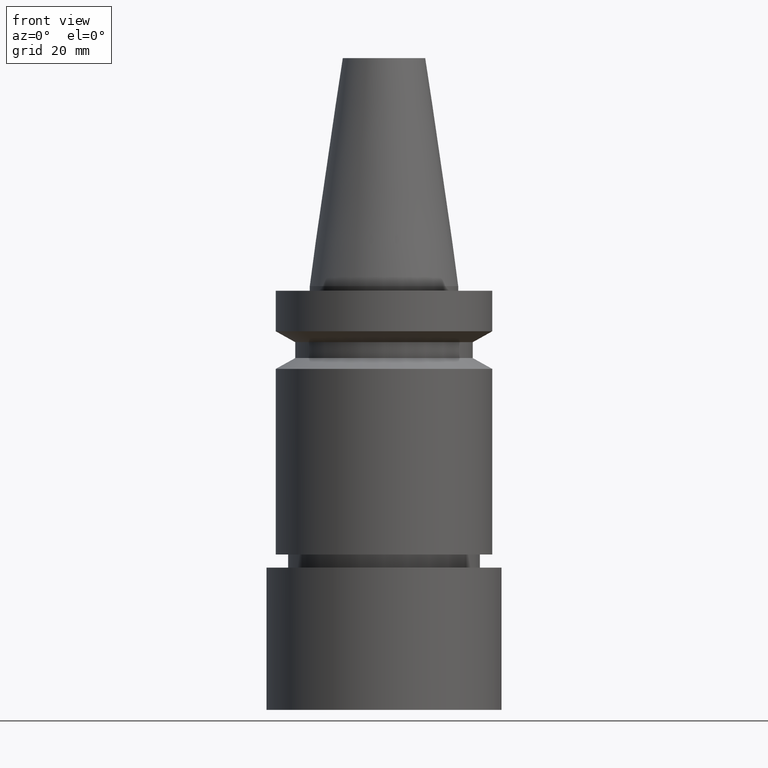
[diagram: clean part render]
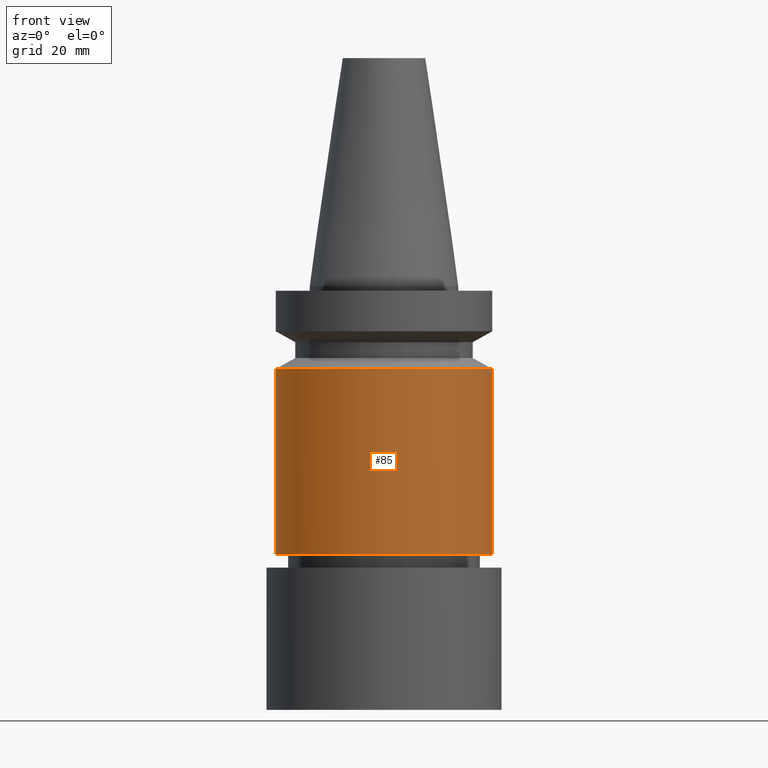
[diagram: same view with one face highlighted and labeled with its STEP entity id]
A machine part, front view. The second image highlights one B-rep face of the part: STEP entity #85.
In plain terms, the highlighted cylindrical surface (bore or boss wall) has radius 23 mm, axis along (0, 0, -1).
Its self-contained STEP definition (entity closure, byte-faithful):
#85=ADVANCED_FACE('Unnamed[1]',(#204,#205),#206,.T.);
#112=EDGE_CURVE('Unnamed[1]',#247,#247,#248,.T.);
#119=EDGE_CURVE('Unnamed[1]',#258,#258,#259,.T.);
#204=FACE_BOUND('',#362,.T.);
#205=FACE_BOUND('',#363,.T.);
#206=CYLINDRICAL_SURFACE('',#364,23.0);
#247=VERTEX_POINT('',#415);
#248=CIRCLE('',#416,23.0);
#258=VERTEX_POINT('',#429);
#259=CIRCLE('',#430,23.0);
#362=EDGE_LOOP('',(#532));
#363=EDGE_LOOP('',(#533));
#364=AXIS2_PLACEMENT_3D('',#534,#535,#536);
#415=CARTESIAN_POINT('',(3.49025302591328E-015,23.0,-57.0001575694042));
#416=AXIS2_PLACEMENT_3D('',#583,#584,#585);
#429=CARTESIAN_POINT('',(1.07768918324967E-015,23.0,-17.6));
#430=AXIS2_PLACEMENT_3D('',#595,#596,#597);
#532=ORIENTED_EDGE('',*,*,#112,.F.);
#533=ORIENTED_EDGE('',*,*,#119,.T.);
#534=CARTESIAN_POINT('',(2.28397110458148E-015,4.56794220916295E-015,-37.3000787847021));
#535=DIRECTION('',(6.12323399573677E-017,1.22464679914735E-016,-1.0));
#536=DIRECTION('',(-1.23259516440783E-032,1.0,1.22464679914735E-016));
#583=CARTESIAN_POINT('',(3.49025302591328E-015,6.98050605182656E-015,-57.0001575694042));
#584=DIRECTION('',(6.12323399573677E-017,1.22464679914735E-016,-1.0));
#585=DIRECTION('',(-1.23259516440783E-032,1.0,1.22464679914735E-016));
#595=CARTESIAN_POINT('',(1.07768918324967E-015,2.15537836649934E-015,-17.6));
#596=DIRECTION('',(6.12323399573677E-017,1.22464679914735E-016,-1.0));
#597=DIRECTION('',(-1.23259516440783E-032,1.0,1.22464679914735E-016));